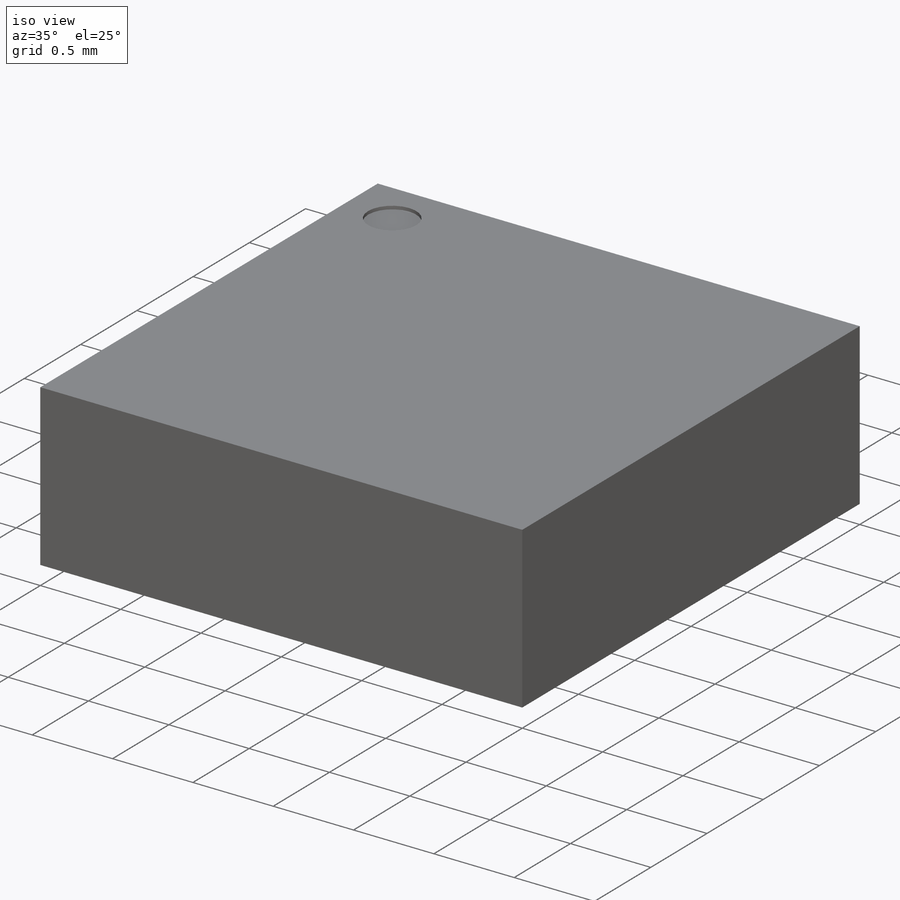
[diagram: iso view]
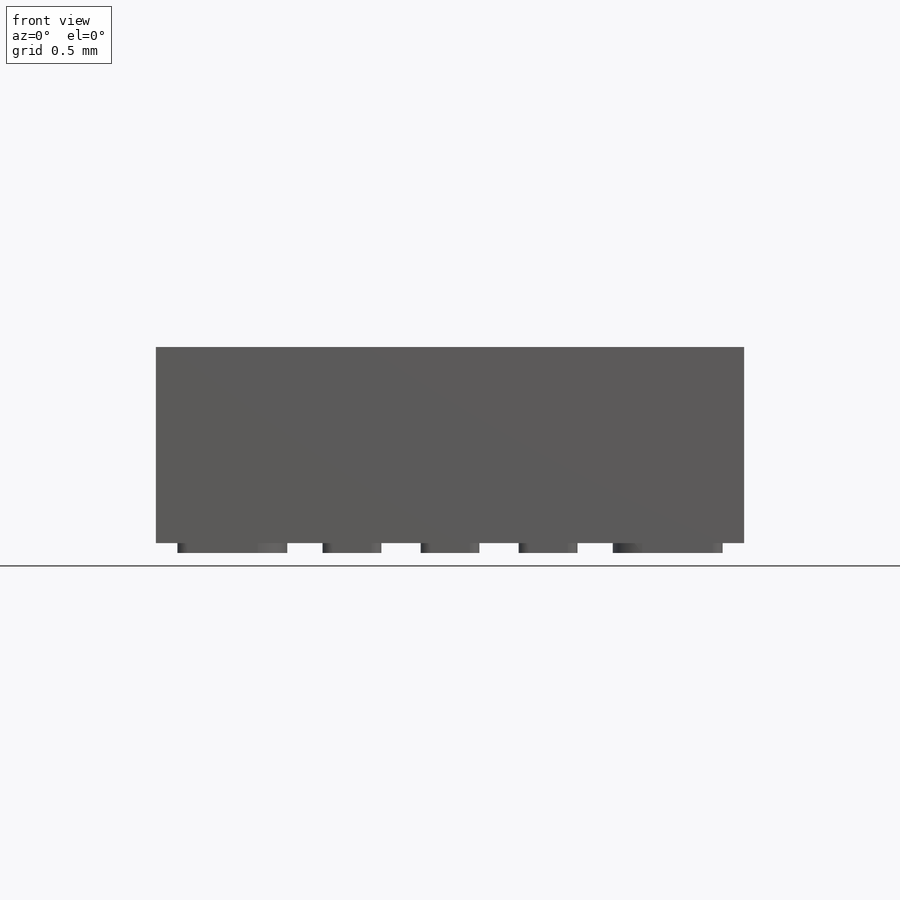
[diagram: front view]
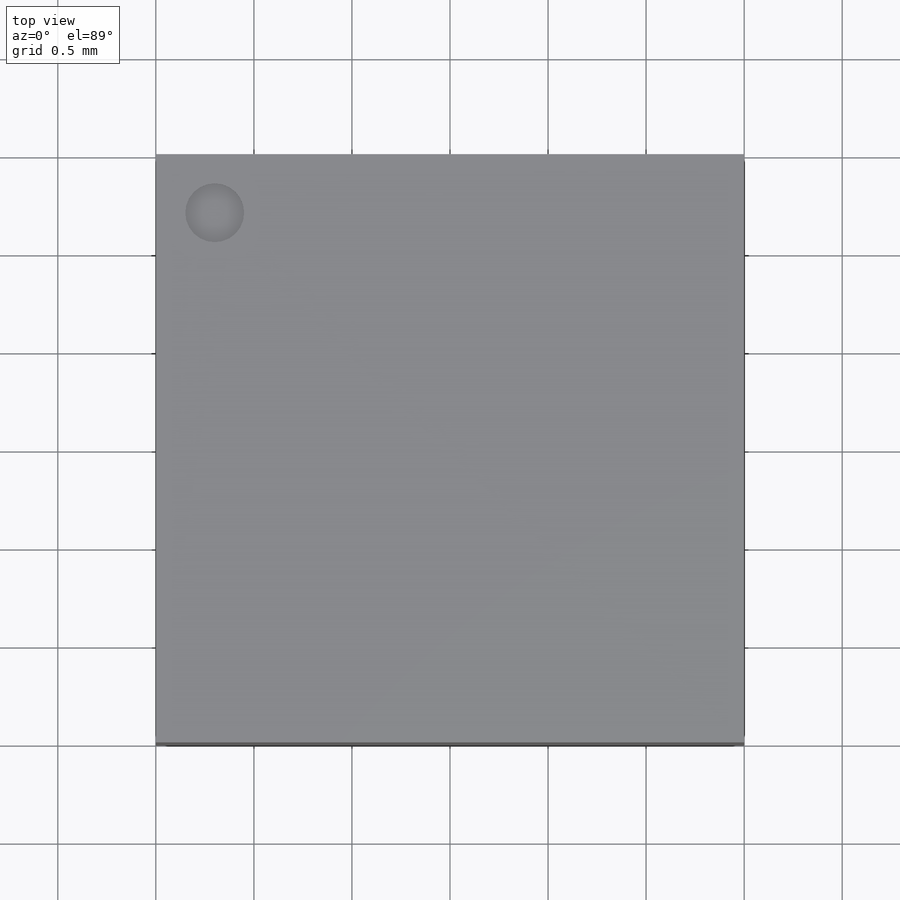
[diagram: top view]
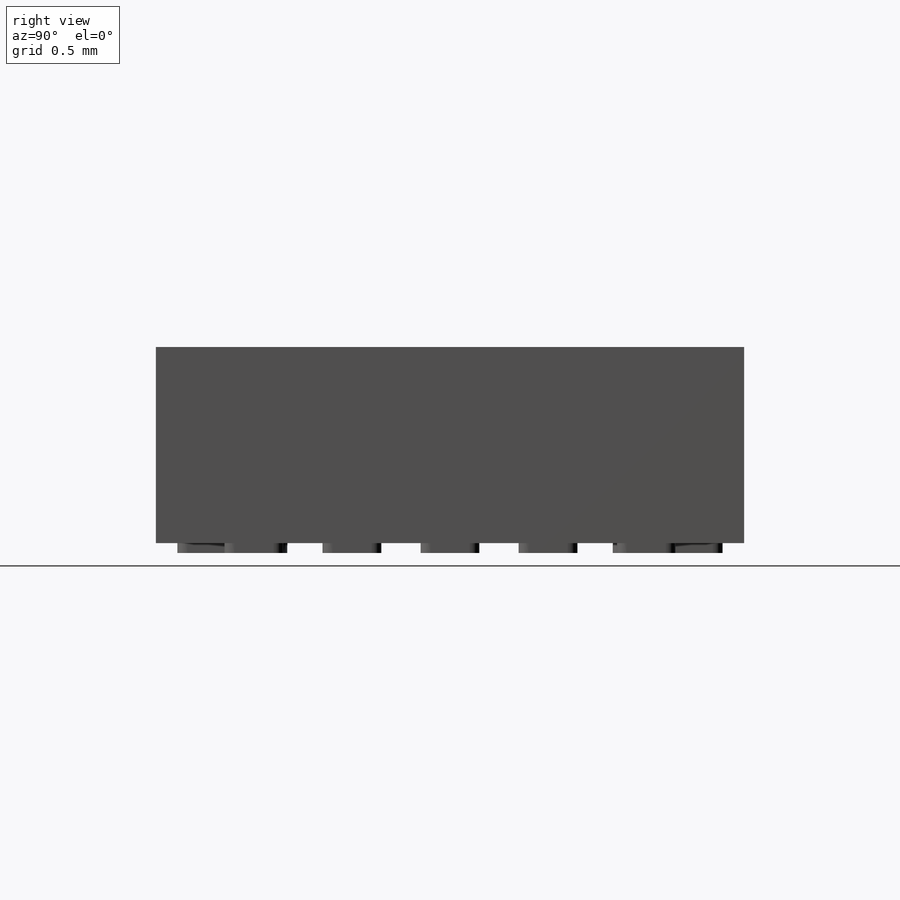
[diagram: right view]
SOLIDWORKS PART (.sldprt)
format: sldprt  version: not decoded by parser v0  size: 334,336 bytes
history: native  units: mm
features: sketch x3, extrude x2, material x1, cut_extrude x1 (+12 scaffold rows collapsed)
feature tree (19):
  scaffold x12  (default folders/planes/origin — collapsed)
  material  "Material <not specified>"
  sketch  "Sketch1"  dims[D1=3.0mm]
  extrude  "Boss-Extrude1"  Depth=1mm
  sketch  "Sketch2"  dims[c1.D19=0.05mm c1.D20=0.05mm c1.D1=0.3mm c1.D2=0.6mm c2.D1=0.5mm c2.D2=0.5mm c2.D3=0.5mm c2.D4=0.5mm c2.D5=0.3mm c2.D6=0.56mm c2.D7=0.5mm c2.D8=0.5mm c2.D9=0.5mm c2.D10=0.5mm c2.D11=0.5mm c2.D12=0.5mm c2.D13=0.5mm c2.D14=0.5mm c2.D15=0.67mm c2.D16=0.67mm c2.D17=0.67mm c2.D18=0.67mm c2.D21=~0.086971mm c3.D21=45.0deg]
  extrude  "Boss-Extrude2"  Depth=0.05mm
  sketch  "Sketch3"  dims[c1.D1=0.3mm c1.D2=0.3mm c1.D3=0.3mm c2.D2=0.3mm c2.D3=0.3mm]
  cut_extrude  "Cut-Extrude1"  Depth=0.02mm
decode coverage: 6 of 6 modeling features carry decoded parameters
note: ~ marks probable driven/reference dimensions
note: suppression state not decoded; provenance and decode notes live in map.json
